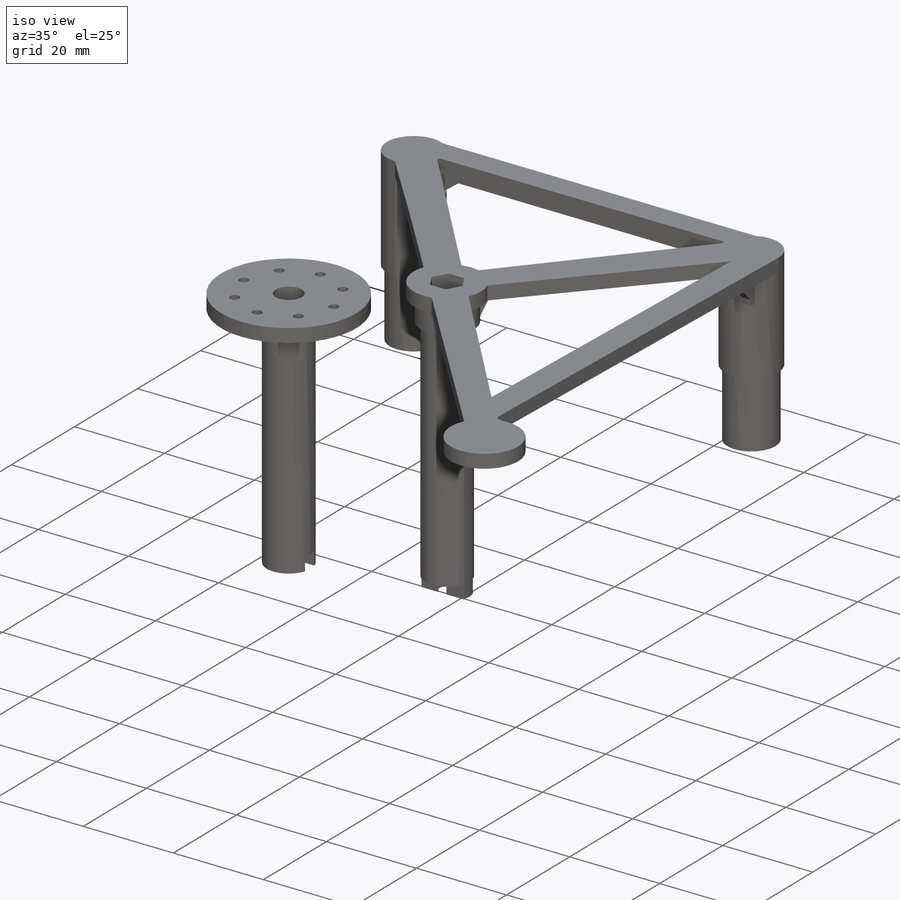
[diagram: iso view]
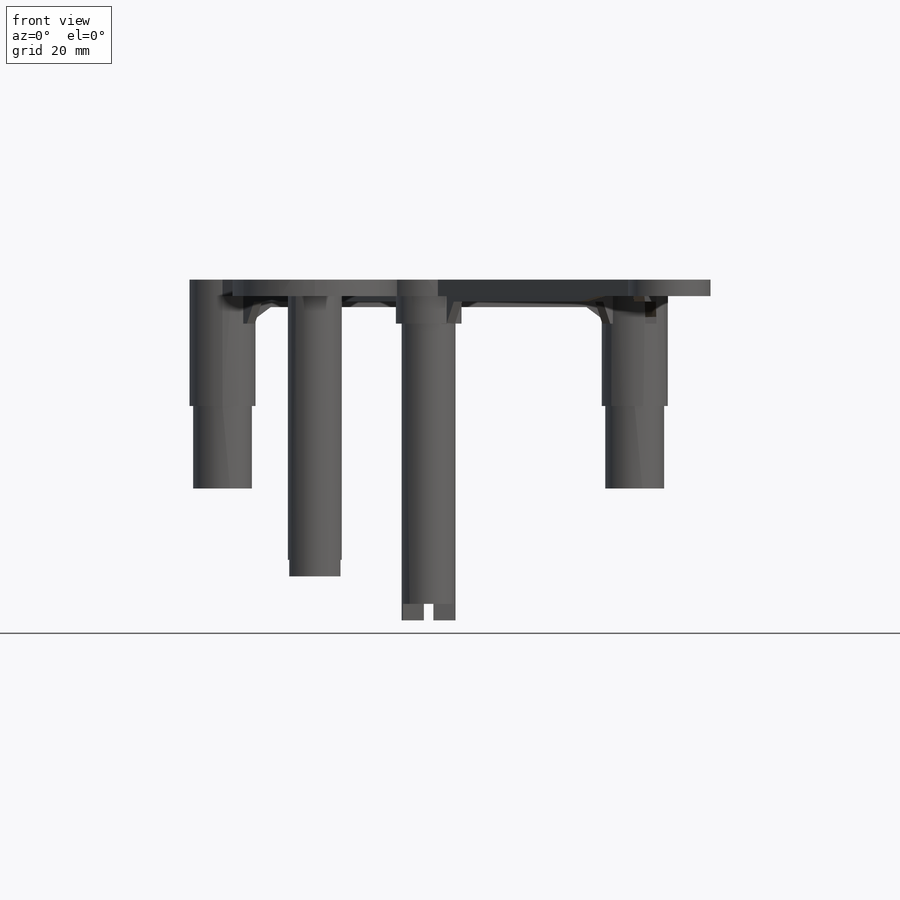
[diagram: front view]
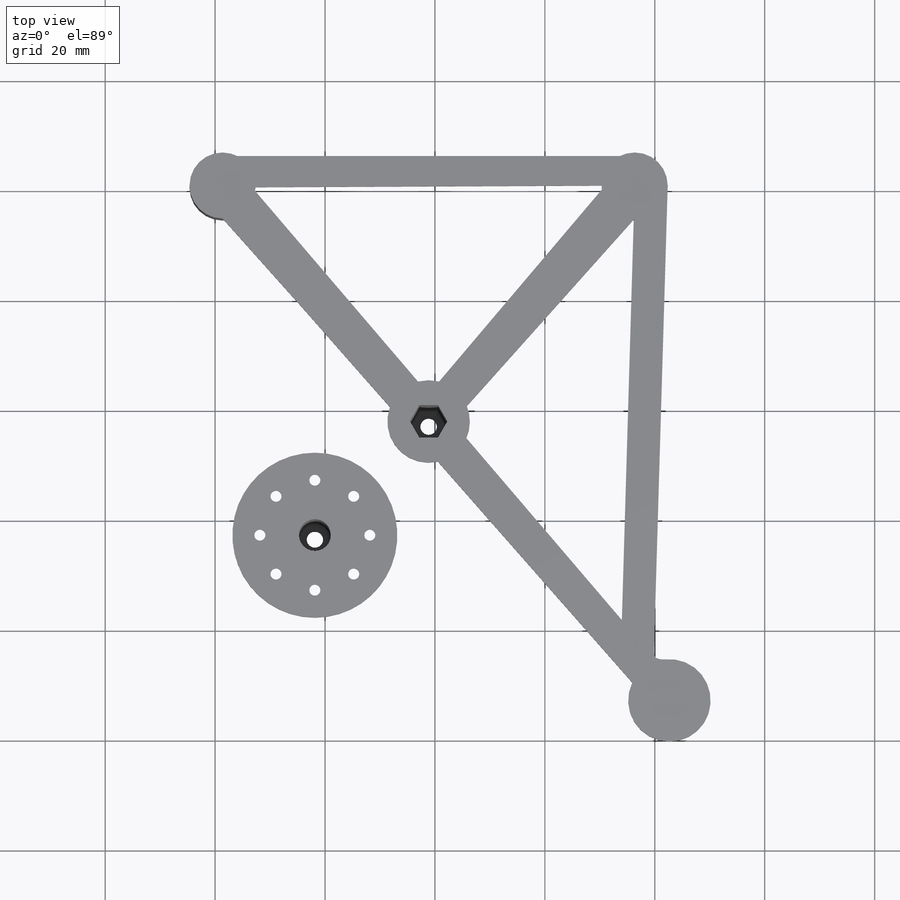
[diagram: top view]
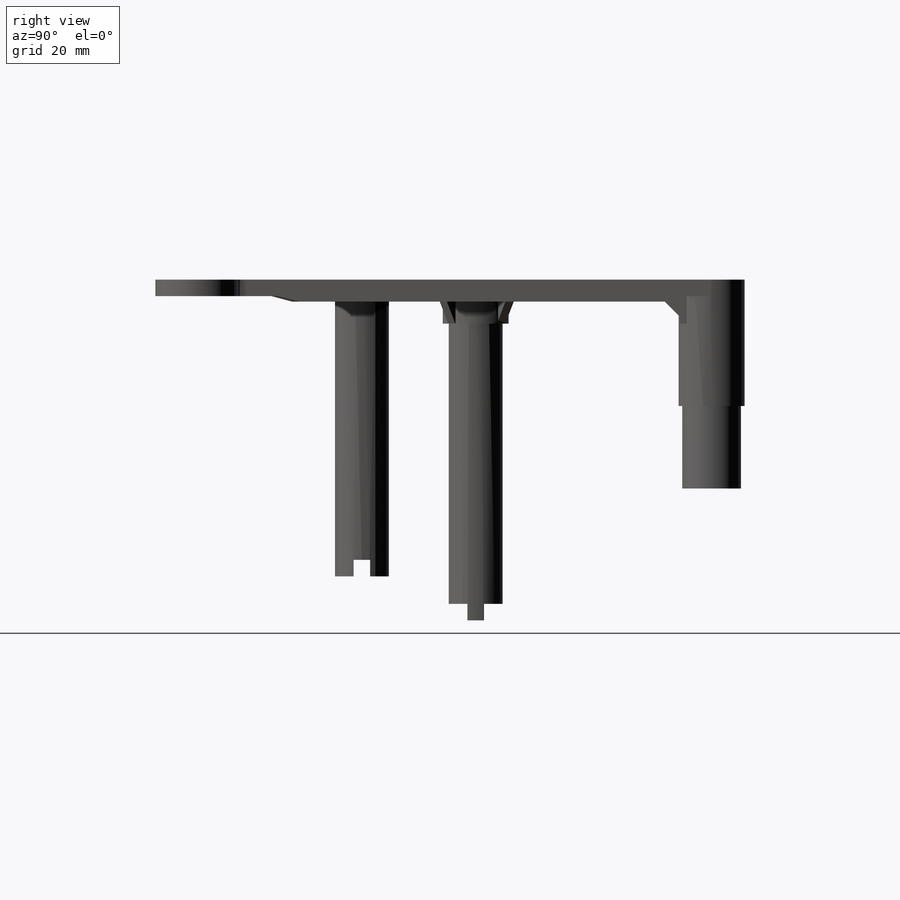
[diagram: right view]
SOLIDWORKS PART (.sldprt)
format: sldprt  version: not decoded by parser v0  size: 1,116,160 bytes
history: native  units: mm
features: sketch x61, extrude x29, cut_extrude x20, sweep x6, fillet x4, plane x3, material x1, pattern_circular x1 (+9 scaffold rows collapsed)
feature tree (134):
  scaffold x9  (default folders/planes/origin — collapsed)
  material  "材质 <未指定>"
  plane  "前视基准面"
  plane  "上视基准面"
  plane  "右视基准面"
  sketch  "草图1"  dims[c1.D1=10.71mm c1.D2=8.14mm c1.D3=8.14mm c1.D4=75.0mm c1.D5=8.14mm c2.D1=~56.340514mm c3.D1=~41.137051deg c3.D2=~56.340514mm c4.D2=~41.137051deg]
  extrude  "凸台-拉伸1"  Depth=3mm
  sketch  "草图2"  dims[D1=10.7mm D2=10.7mm]
  extrude  "凸台-拉伸2"  Depth=23mm
  sketch  "草图3"  dims[D1=9.0mm D2=9.0mm D3=9.0mm D4=~26.887911mm D5=~26.887911mm D6=~35.377092mm]
  cut_extrude  "切除-拉伸1"  Depth=3mm
  sketch  "草图4"  dims[D1=10.0mm]
  extrude  "凸台-拉伸3"  Depth=100mm
  sketch  "草图5"
  extrude  "凸台-拉伸4"  Depth=3mm
  sketch  "草图6"
  extrude  "凸台-拉伸5"  Depth=5mm
  sketch  "草图7"
  extrude  "凸台-拉伸6"  Depth=5mm
  sketch  "草图8"
  extrude  "凸台-拉伸7"  Depth=3mm
  sketch  "草图9"
  extrude  "凸台-拉伸8"  Depth=3mm
  sketch  "草图10"
  cut_extrude  "切除-拉伸2"  Depth=3mm
  sketch  "草图12"  dims[D1=12.0mm D2=12.0mm]
  extrude  "凸台-拉伸10"  Depth=13mm
  sketch  "草图13"  dims[D1=6.0mm D2=6.0mm]
  cut_extrude  "切除-拉伸3"  Depth=23mm
  sketch  "草图14"  dims[D1=6.25mm]
  cut_extrude  "切除-拉伸5"  Depth=100mm
  sketch  "草图15"
  extrude  "凸台-拉伸11"  Depth=5mm
  sketch  "草图16"
  extrude  "凸台-拉伸12"  Depth=5mm
  sketch  "草图17"
  extrude  "凸台-拉伸13"  Depth=5mm
  sketch  "草图18"
  extrude  "凸台-拉伸14"  Depth=5mm
  sketch  "草图20"
  extrude  "凸台-拉伸15"  Depth=5mm
  sketch  "草图21"
  extrude  "凸台-拉伸16"  Depth=5mm
  sketch  "草图22"
  extrude  "凸台-拉伸17"  Depth=5mm
  sketch  "草图23"
  extrude  "凸台-拉伸18"  Depth=5mm
  sketch  "草图25"  dims[D1=15.0mm]
  extrude  "凸台-拉伸20"  Depth=3mm
  sketch  "草图28"  dims[D1=73.0mm]
  extrude  "凸台-拉伸21"  Depth=3mm
  sketch  "草图29"  dims[D1=20.0mm D2=6.0mm D3=88.0mm D4=6.0mm]
  extrude  "凸台-拉伸23"  Depth=3mm
  sketch  "草图30"  dims[D1=15.0mm]
  extrude  "凸台-拉伸24"  Depth=3mm
  fillet  "圆角1"  Radius=3mm
  sketch  "草图31"  dims[D1=2.0mm D2=2.0mm D3=2.0mm D4=2.0mm D5=2.0mm]
  extrude  "凸台-拉伸29"  Depth=5mm
  sketch  "草图35"  dims[D1=2.0mm D2=4.0mm D3=4.0mm]
  sketch  "草图36"
  sweep  "切除-扫描1"
  sketch  "草图37"  dims[D1=1.0mm D2=4.0mm D3=4.0mm]
  sketch  "草图38"
  sweep  "切除-扫描3"
  sketch  "草图39"
  extrude  "凸台-拉伸31"  Depth=2mm
  sketch  "草图40"  dims[c1.D1=1.0mm c1.D2=4.0mm c1.D3=4.0mm c1.D4=~38.001118mm c2.D1=1.0mm c2.D2=2.0mm c2.D3=1.0mm c2.D4=1.0mm c2.D5=2.0mm]
  sketch  "草图42"
  sweep  "切除-扫描5"
  sketch  "草图43"  dims[D1=1.0mm D2=1.0mm D3=1.0mm D4=2.0mm D5=2.0mm D6=~44.560356mm]
  sketch  "草图44"
  sweep  "切除-扫描6"
  sketch  "草图46"  dims[c1.D1=1.0mm c1.D2=~4.784544mm c1.D3=~43.303771mm c2.D2=1.0mm c2.D3=2.0mm c2.D4=5.0mm]
  sketch  "草图47"
  sweep  "切除-扫描7"
  sketch  "草图48"
  sketch  "草图49"
  sweep  "切除-扫描8"
  sketch  "草图50"
  extrude  "凸台-拉伸32"  Depth=103mm
  sketch  "草图52"  dims[D1=9.8mm]
  cut_extrude  "切除-拉伸7"  Depth=95mm
  sketch  "草图53"
  cut_extrude  "切除-拉伸8"  Depth=44mm
  sketch  "草图54"  dims[D1=3.0mm D2=5.5mm]
  extrude  "凸台-拉伸33"  Depth=5mm
  sketch  "草图55"  dims[D1=5.6mm]
  cut_extrude  "切除-拉伸9"  Depth=56mm
  sketch  "草图56"
  cut_extrude  "切除-拉伸10"  Depth=6mm
  sketch  "草图57"  dims[D1=30.0mm D2=~2.650107mm]
  extrude  "凸台-拉伸34"  Depth=3mm
  sketch  "草图58"  dims[D1=9.8mm]
  extrude  "凸台-拉伸35"  Depth=51mm
  sketch  "草图59"  dims[D1=5.5mm]
  cut_extrude  "切除-拉伸11"  Depth=5mm
  sketch  "草图60"  dims[D1=5.5mm]
  cut_extrude  "切除-拉伸12"  Depth=46mm
  sketch  "草图61"  dims[D1=3.0mm]
  cut_extrude  "切除-拉伸13"  Depth=9mm
  sketch  "草图62"  dims[D1=5.0mm D2=4.1mm]
  cut_extrude  "切除-拉伸14"  Depth=1.65mm
  sketch  "草图63"  dims[D1=2.0mm]
  cut_extrude  "切除-拉伸15"  Depth=1.5mm
  pattern_circular  "阵列(圆周)1"  Count=8 Angle=360deg
  sketch  "草图64"
  cut_extrude  "切除-拉伸17"  Depth=5mm
  sketch  "草图65"  dims[D1=5.9mm]
  cut_extrude  "切除-拉伸18"  Depth=56mm
  fillet  "圆角2"  Radius=1mm
  sketch  "草图66"
  extrude  "凸台-拉伸36"  Depth=5mm
  sketch  "草图67"
  cut_extrude  "切除-拉伸19"  Depth=5mm
  fillet  "圆角3"  Radius=1mm
  sketch  "草图68"  dims[D1=1.5mm]
  sketch  "草图69"
  extrude  "凸台-拉伸37"  Depth=3mm
  cut_extrude  "切除-拉伸20"  Depth=3mm
  sketch  "草图70"  dims[D1=1.5mm]
  cut_extrude  "切除-拉伸21"  Depth=3mm
  sketch  "草图71"  dims[D1=5.8mm]
  cut_extrude  "切除-拉伸22"  Depth=46mm
  fillet  "圆角4"  Radius=1mm
  sketch  "草图72"
  cut_extrude  "切除-拉伸23"  Depth=3mm
decode coverage: 85 of 121 modeling features carry decoded parameters
note: ~ marks probable driven/reference dimensions
summary: profile_refs inferred from adjacent sketches, not decoded
note: suppression state not decoded; provenance and decode notes live in map.json
